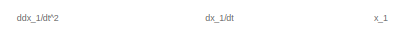
[diagram: root canvas - part 1/4, top center region]
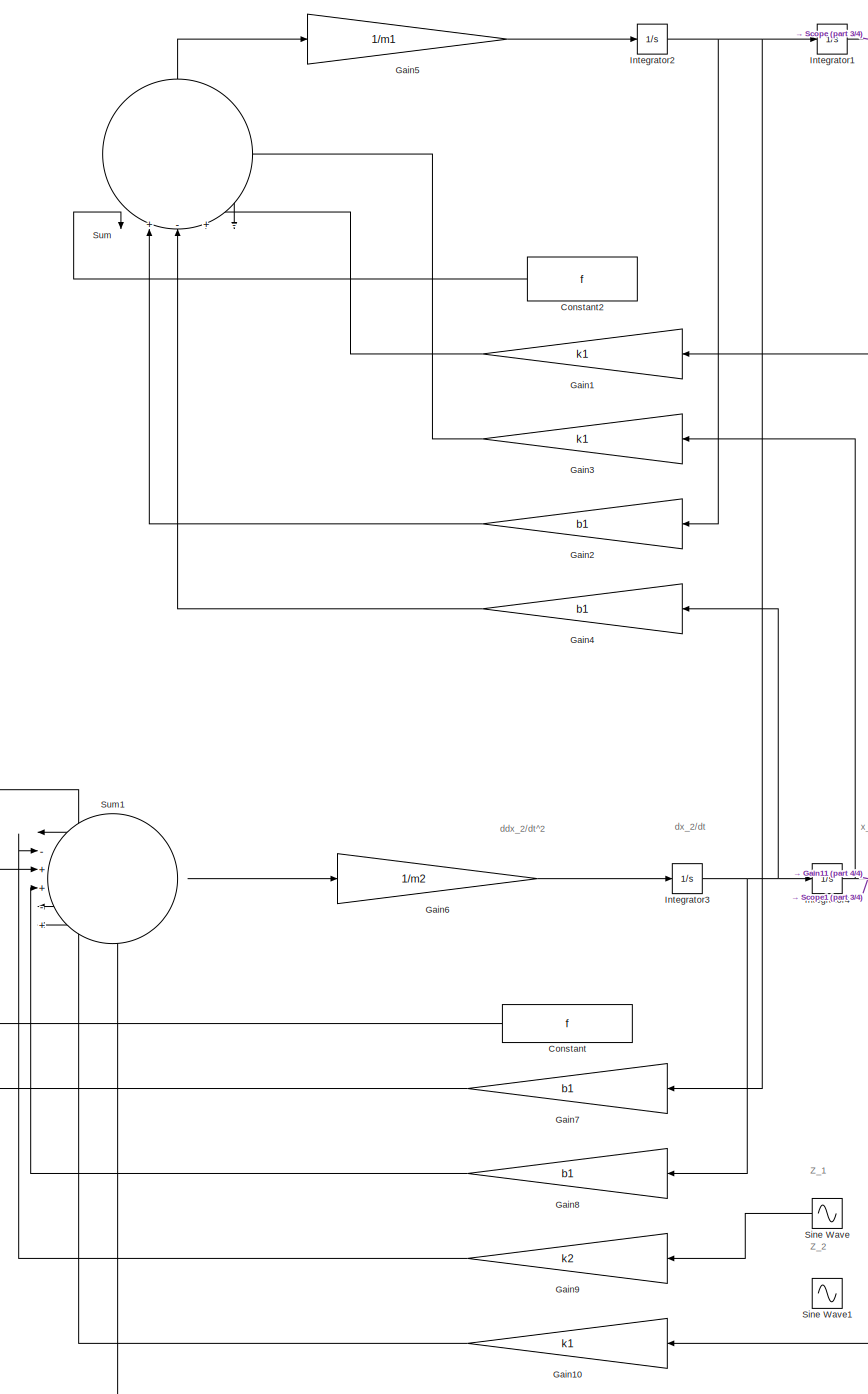
[diagram: root canvas - part 2/4, most of the canvas]
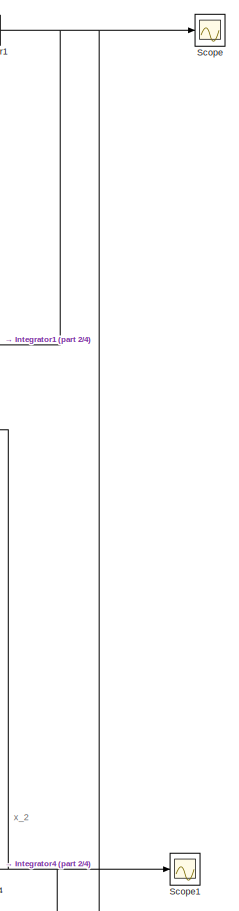
[diagram: root canvas - part 3/4, middle right region]
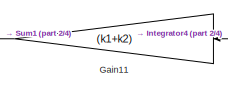
[diagram: root canvas - part 4/4, bottom center region]
MODEL slx_e61a862f7ccb
KIND model
CONFIG AbsTol = auto
CONFIG EnableMultiTasking = off
CONFIG FixedStep = auto
CONFIG InitFcn = m1 = 290;\nb1 = 1000;\nm2 = 59;\nk1 = 16182; \nf = 0;\nk2 = 19000;
CONFIG MaxStep = auto
CONFIG MinStep = auto
CONFIG RelTol = 1e-3
CONFIG SampleTimeConstraint = Unconstrained
CONFIG SolverName = VariableStepAuto
CONFIG StartTime = 0.0
CONFIG StopTime = 10.0
BLOCK [Constant] Constant
  NameLocation = top
  Value = f
BLOCK [Constant] Constant2
  NameLocation = top
  Value = f
BLOCK [Gain] Gain1
  Gain = k1
  NameLocation = top
BLOCK [Gain] Gain10
  Gain = k1
  NameLocation = top
BLOCK [Gain] Gain11
  Gain = (k1+k2)
  NameLocation = top
BLOCK [Gain] Gain2
  Gain = b1
  NameLocation = top
BLOCK [Gain] Gain3
  Gain = k1
  NameLocation = top
BLOCK [Gain] Gain4
  Gain = b1
  NameLocation = top
BLOCK [Gain] Gain5
  Gain = 1/m1
BLOCK [Gain] Gain6
  Gain = 1/m2
BLOCK [Gain] Gain7
  Gain = b1
  NameLocation = top
BLOCK [Gain] Gain8
  Gain = b1
  NameLocation = top
BLOCK [Gain] Gain9
  Gain = k2
  NameLocation = top
BLOCK [Integrator] Integrator1
BLOCK [Integrator] Integrator2
BLOCK [Integrator] Integrator3
BLOCK [Integrator] Integrator4
BLOCK [Scope] Scope
  ActiveDisplayYMaximum = 0.080554855938756692
  ActiveDisplayYMinimum = -0.070240527704496708
  Floating = off
  GraphicalSettings = {"Style":{"BackgroundColor":[0.12941176470588237,0.12941176470588237,0.12941176470588237],"AxesColor":[0.07058823529411765,0.07058823529411765,0.07058823529411765],"LabelsColor":[0.8509803921568627,0.8509803921568627,0.8509803921568627],"PreserveColors":false,"Visible":[true],"LineStyle":["-"],"LineWidth":[1.5],"BarWidth":[0.9],"LineColor":["auto"],"LineFaceAlpha":[1],"LineEdgeAlpha":[1],"Marker":...<+2013ch>
  MultipleDisplayCache = [{"MaxYLimMag":0.080554855938756692,"MaxYLimReal":0.080554855938756692,"MinYLimMag":0,"MinYLimReal":-0.070240527704496708,"PlotAsMagnitudePhase":false,"ShowGrid":true,"ShowLegend":false,"Title":"%<SignalLabel>","YLabel":""}]
  NumInputPorts = 1
  ScopeFrameLocation = window
  WasSavedAsWebScope = on
  WindowPosition = [0.000000,32.000000,1920.000000,1017.000000,]
BLOCK [Scope] Scope1
  ActiveDisplayYMaximum = 0.070956552851740851
  ActiveDisplayYMinimum = -0.066392429182942844
  DataLoggingVariableName = ScopeData1
  Floating = off
  GraphicalSettings = {"Style":{"BackgroundColor":[0.12941176470588237,0.12941176470588237,0.12941176470588237],"AxesColor":[0.07058823529411765,0.07058823529411765,0.07058823529411765],"LabelsColor":[0.8509803921568627,0.8509803921568627,0.8509803921568627],"PreserveColors":false,"Visible":[true],"LineStyle":["-"],"LineWidth":[1.5],"BarWidth":[0.9],"LineColor":["auto"],"LineFaceAlpha":[1],"LineEdgeAlpha":[1],"Marker":...<+2012ch>
  MultipleDisplayCache = [{"MaxYLimMag":0.070956552851740851,"MaxYLimReal":0.070956552851740851,"MinYLimMag":0,"MinYLimReal":-0.066392429182942844,"PlotAsMagnitudePhase":false,"ShowGrid":true,"ShowLegend":false,"Title":"%<SignalLabel>","YLabel":""}]
  NumInputPorts = 1
  ScopeFrameLocation = window
  WasSavedAsWebScope = on
  WindowPosition = [0.000000,32.000000,1920.000000,1017.000000,]
BLOCK [Sin] Sine Wave
  Amplitude = 0.05
  Frequency = 0.5*pi
  NameLocation = top
  SampleTime = 0
BLOCK [Sin] Sine Wave1
  Amplitude = 0.05
  Frequency = 20*pi
  NameLocation = top
  SampleTime = 0
BLOCK [Sum] Sum
  Inputs = |+-+-+
  NameLocation = right
BLOCK [Sum] Sum1
  Inputs = |-++-+-
ANNOTATION (root): Z_1
ANNOTATION (root): Z_2
ANNOTATION (root): ddx_1/dt^2
ANNOTATION (root): ddx_2/dt^2
ANNOTATION (root): dx_1/dt
ANNOTATION (root): dx_2/dt
ANNOTATION (root): x_1
ANNOTATION (root): x_2
LINE Constant2:1 -> Sum:1
LINE Constant:1 -> Sum1:1
LINE Gain10:1 -> Sum1:5
LINE Gain11:1 -> Sum1:6
LINE Gain1:1 -> Sum:4
LINE Gain2:1 -> Sum:2
LINE Gain3:1 -> Sum:5
LINE Gain4:1 -> Sum:3
LINE Gain5:1 -> Integrator2:1
LINE Gain6:1 -> Integrator3:1
LINE Gain7:1 -> Sum1:3
LINE Gain8:1 -> Sum1:4
LINE Gain9:1 -> Sum1:2
NET Integrator1:1 -> Gain10:1, Gain1:1, Scope:1
NET Integrator2:1 -> Gain2:1, Gain7:1, Integrator1:1
NET Integrator3:1 -> Gain4:1, Gain8:1, Integrator4:1
NET Integrator4:1 -> Gain11:1, Gain3:1, Scope1:1
LINE Sine Wave:1 -> Gain9:1
LINE Sum1:1 -> Gain6:1
LINE Sum:1 -> Gain5:1
note: NET lines group one-source signal fan-out (src -> all destinations, sorted); 1:1 wires keep LINE
